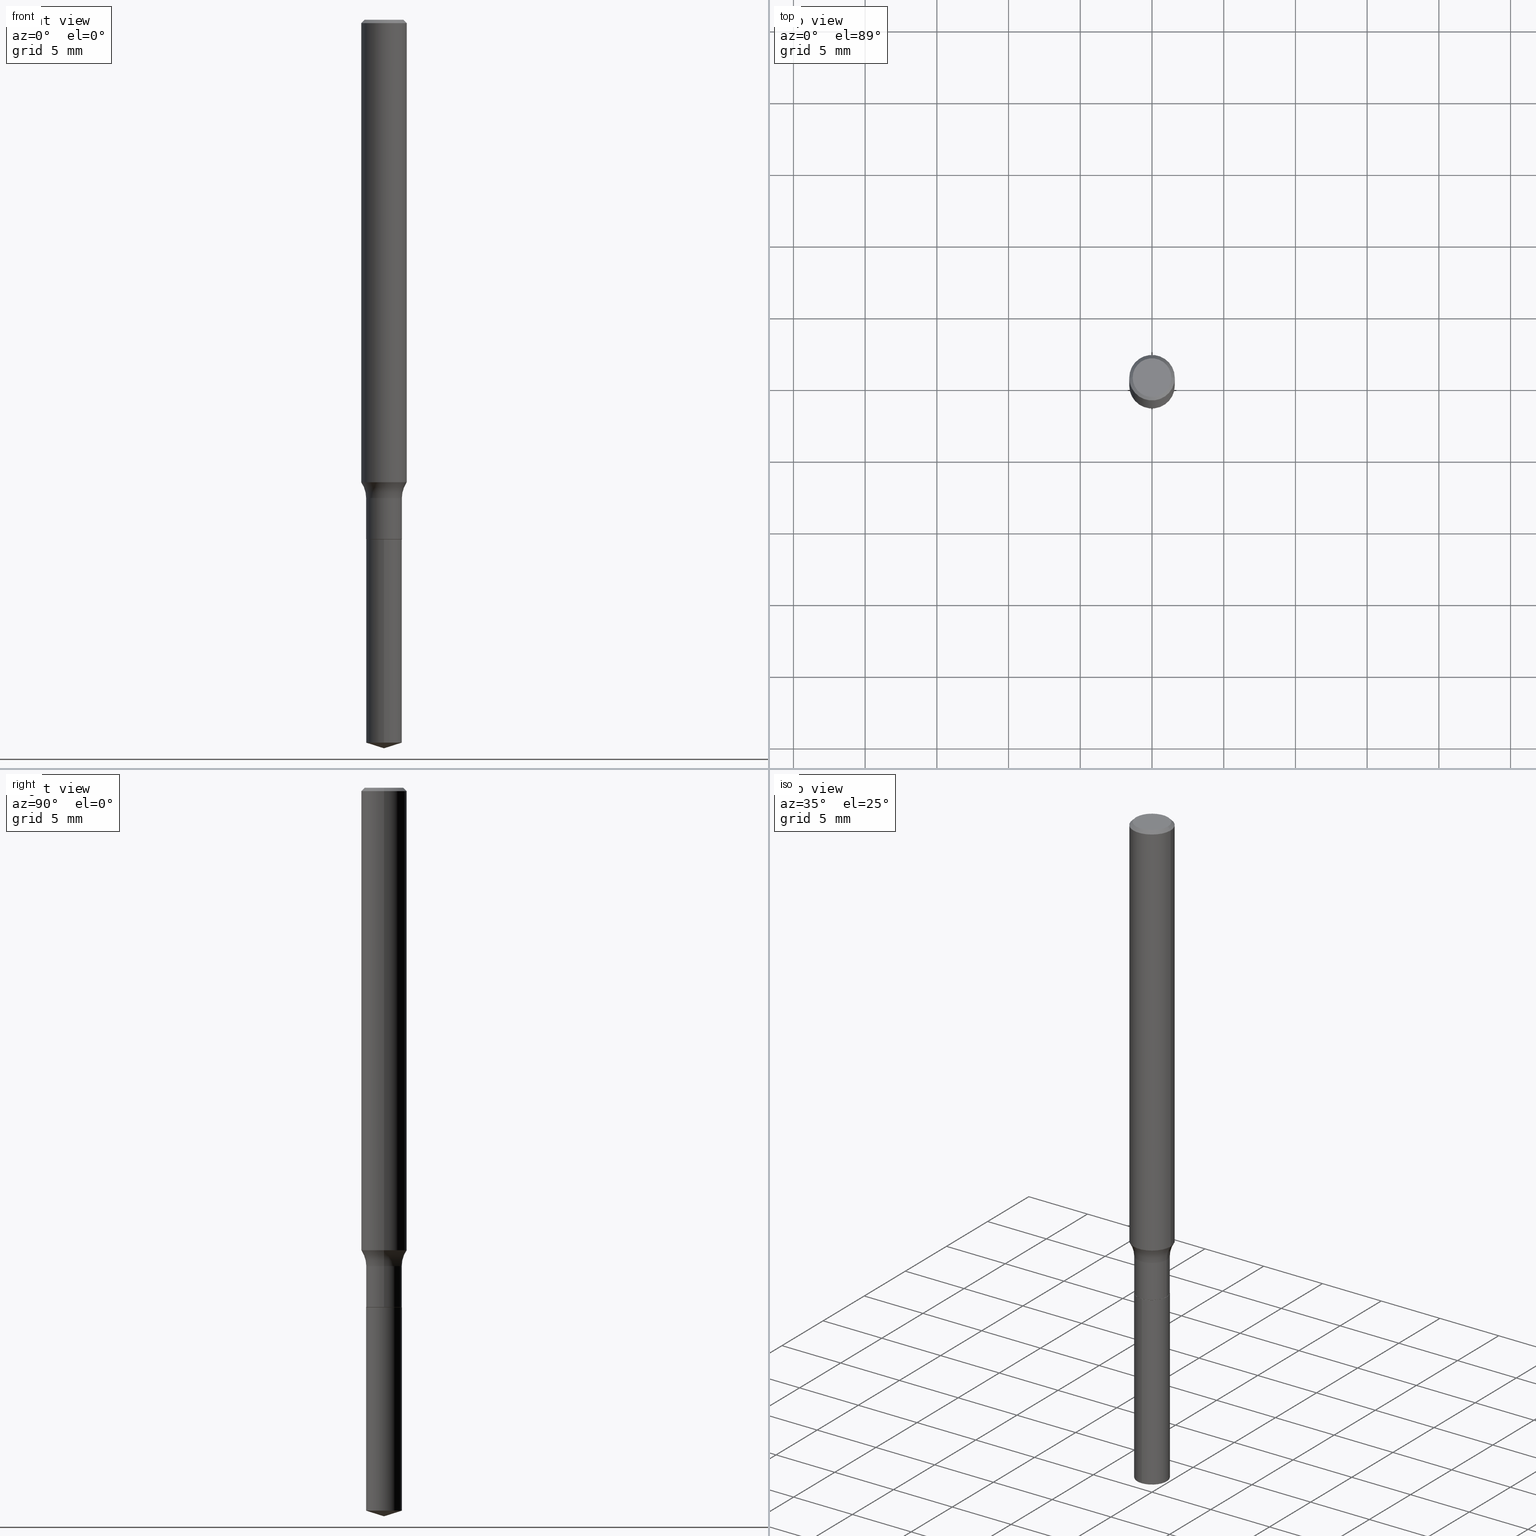
[diagram: canonical four-view strip — front | top / right | iso, engineering-drawing reading convention]
A machine part, canonical four-view strip (front | top / right | iso — engineering-drawing reading convention). The complete STEP part file that produces these views, byte-faithful:
ISO-10303-21;
HEADER;
FILE_DESCRIPTION (( 'STEP AP203' ),
    '1' );
FILE_NAME ('52306.STEP',
    '2024-04-19T13:31:49',
    ( '' ),
    ( '' ),
    'SwSTEP 2.0',
    'SolidWorks 2023',
    '' );
FILE_SCHEMA (( 'CONFIG_CONTROL_DESIGN' ));
ENDSEC;

DATA;
#1 = DIRECTION ( 'NONE',  ( -2.445105695917542443E-29, 3.492001333413293557E-15, 1.000000000000000000 ) ) ;
#2 = CYLINDRICAL_SURFACE ( 'NONE', #377, 0.06250000000000008327 ) ;
#3 = LINE ( 'NONE', #275, #361 ) ;
#4 = ORIENTED_EDGE ( 'NONE', *, *, #203, .T. ) ;
#5 = PERSON_AND_ORGANIZATION ( #209, #441 ) ;
#6 = DIRECTION ( 'NONE',  ( -2.445468806185136597E-29, 3.491481338843145583E-15, 1.000000000000000000 ) ) ;
#7 = DIRECTION ( 'NONE',  ( 1.000000000000000000, -6.982962677686269077E-15, 4.883557194083113462E-29 ) ) ;
#8 = ORIENTED_EDGE ( 'NONE', *, *, #301, .T. ) ;
#9 = PERSON_AND_ORGANIZATION ( #209, #441 ) ;
#10 = DIRECTION ( 'NONE',  ( -1.000000000000000000, 7.105427357601001859E-15, 0.000000000000000000 ) ) ;
#11 = ORIENTED_EDGE ( 'NONE', *, *, #59, .T. ) ;
#12 = LINE ( 'NONE', #126, #98 ) ;
#13 = ORIENTED_EDGE ( 'NONE', *, *, #114, .F. ) ;
#14 = ADVANCED_FACE ( 'NONE', ( #57 ), #20, .T. ) ;
#15 = DESIGN_CONTEXT ( 'detailed design', #397, 'design' ) ;
#16 = ORIENTED_EDGE ( 'NONE', *, *, #435, .F. ) ;
#17 = CIRCLE ( 'NONE', #181, 0.07799999999999995826 ) ;
#18 = PERSON_AND_ORGANIZATION ( #209, #441 ) ;
#19 = DIRECTION ( 'NONE',  ( 1.000000000000000000, 0.000000000000000000, 0.000000000000000000 ) ) ;
#20 = CYLINDRICAL_SURFACE ( 'NONE', #433, 0.04899999999999999495 ) ;
#21 = EDGE_LOOP ( 'NONE', ( #16, #29 ) ) ;
#22 = ORIENTED_EDGE ( 'NONE', *, *, #38, .T. ) ;
#23 = FACE_OUTER_BOUND ( 'NONE', #286, .T. ) ;
#24 = AXIS2_PLACEMENT_3D ( 'NONE', #390, #319, #46 ) ;
#25 = EDGE_LOOP ( 'NONE', ( #320, #82, #362, #179 ) ) ;
#26 = DIRECTION ( 'NONE',  ( 2.445468806185136597E-29, -3.491481338843145583E-15, -1.000000000000000000 ) ) ;
#27 = DIRECTION ( 'NONE',  ( -6.982962677686265922E-15, -1.000000000000000000, 5.575199987069924823E-15 ) ) ;
#28 = LINE ( 'NONE', #333, #113 ) ;
#29 = ORIENTED_EDGE ( 'NONE', *, *, #102, .F. ) ;
#30 = DIRECTION ( 'NONE',  ( -2.445468806185136597E-29, 3.491481338843145583E-15, 1.000000000000000000 ) ) ;
#31 = DIRECTION ( 'NONE',  ( 1.000000000000000000, -6.982962677686274599E-15, 0.000000000000000000 ) ) ;
#32 = ADVANCED_FACE ( 'NONE', ( #132 ), #61, .T. ) ;
#33 = DIRECTION ( 'NONE',  ( 2.438088387897960049E-29, -3.491481338843145188E-15, -1.000000000000000000 ) ) ;
#34 = CIRCLE ( 'NONE', #245, 0.04900000000000000189 ) ;
#35 = FACE_OUTER_BOUND ( 'NONE', #486, .T. ) ;
#36 = SECURITY_CLASSIFICATION ( '', '', #391 ) ;
#37 = FACE_OUTER_BOUND ( 'NONE', #401, .T. ) ;
#38 = EDGE_CURVE ( 'NONE', #478, #437, #211, .T. ) ;
#39 = DIRECTION ( 'NONE',  ( -2.445468806185136597E-29, 3.491481338843145583E-15, 1.000000000000000000 ) ) ;
#40 = CARTESIAN_POINT ( 'NONE',  ( 3.481659405224839130E-16, 0.04899999999999502670, -1.426100000000000145 ) ) ;
#41 = AXIS2_PLACEMENT_3D ( 'NONE', #418, #297, #417 ) ;
#42 = AXIS2_PLACEMENT_3D ( 'NONE', #410, #373, #31 ) ;
#43 = LINE ( 'NONE', #345, #479 ) ;
#44 = ORIENTED_EDGE ( 'NONE', *, *, #186, .T. ) ;
#45 = EDGE_CURVE ( 'NONE', #104, #130, #340, .T. ) ;
#46 = DIRECTION ( 'NONE',  ( 1.000000000000000000, -6.982962677686266711E-15, 0.000000000000000000 ) ) ;
#47 = ORIENTED_EDGE ( 'NONE', *, *, #122, .F. ) ;
#48 = PERSON_AND_ORGANIZATION ( #209, #441 ) ;
#49 = DIRECTION ( 'NONE',  ( -6.982962677686265922E-15, -1.000000000000000000, 5.575199987069924823E-15 ) ) ;
#50 =( NAMED_UNIT ( * ) PLANE_ANGLE_UNIT ( ) SI_UNIT ( $, .RADIAN. ) );
#51 = ORIENTED_EDGE ( 'NONE', *, *, #416, .T. ) ;
#52 = CIRCLE ( 'NONE', #155, 0.06250000000000000000 ) ;
#53 = DIRECTION ( 'NONE',  ( -6.982962677686265922E-15, -1.000000000000000000, 5.575199987069924823E-15 ) ) ;
#54 = PERSON_AND_ORGANIZATION_ROLE ( 'design_supplier' ) ;
#55 = ORIENTED_EDGE ( 'NONE', *, *, #342, .F. ) ;
#56 = PERSON_AND_ORGANIZATION_ROLE ( 'creator' ) ;
#57 = FACE_OUTER_BOUND ( 'NONE', #202, .T. ) ;
#58 = CIRCLE ( 'NONE', #191, 0.06250000000000016653 ) ;
#59 = EDGE_CURVE ( 'NONE', #170, #327, #383, .T. ) ;
#60 = ORIENTED_EDGE ( 'NONE', *, *, #153, .T. ) ;
#61 = CYLINDRICAL_SURFACE ( 'NONE', #64, 0.04900000000000000189 ) ;
#62 = DIMENSIONAL_EXPONENTS ( 1.000000000000000000, 0.000000000000000000, 0.000000000000000000, 0.000000000000000000, 0.000000000000000000, 0.000000000000000000, 0.000000000000000000 ) ;
#63 = ORIENTED_EDGE ( 'NONE', *, *, #84, .F. ) ;
#64 = AXIS2_PLACEMENT_3D ( 'NONE', #444, #244, #405 ) ;
#65 = LOCAL_TIME ( 9, 31, 49.00000000000000000, #199 ) ;
#66 = ORIENTED_EDGE ( 'NONE', *, *, #259, .T. ) ;
#67 = CYLINDRICAL_SURFACE ( 'NONE', #270, 0.06250000000000008327 ) ;
#68 = ADVANCED_FACE ( 'NONE', ( #183 ), #219, .F. ) ;
#69 = CARTESIAN_POINT ( 'NONE',  ( 4.852953219022108829E-29, -6.929310936801836809E-15, -1.984550359344929626 ) ) ;
#70 = CARTESIAN_POINT ( 'NONE',  ( -3.421651712065921676E-16, -0.04900000000000497707, -1.426099999999999479 ) ) ;
#71 = ADVANCED_FACE ( 'NONE', ( #37 ), #368, .F. ) ;
#72 = AXIS2_PLACEMENT_3D ( 'NONE', #372, #30, #180 ) ;
#73 = DIRECTION ( 'NONE',  ( -2.445105695917542443E-29, 3.492001333413293557E-15, 1.000000000000000000 ) ) ;
#74 = AXIS2_PLACEMENT_3D ( 'NONE', #430, #90, #19 ) ;
#75 = FACE_OUTER_BOUND ( 'NONE', #442, .T. ) ;
#76 = DIRECTION ( 'NONE',  ( -0.7071067811865466846, 2.468850131082247989E-15, -0.7071067811865483499 ) ) ;
#77 = DIRECTION ( 'NONE',  ( 1.000000000000000000, -6.982962677686266711E-15, 4.876176775795935793E-29 ) ) ;
#78 = DIRECTION ( 'NONE',  ( 1.000000000000000000, -6.982962677686261977E-15, 0.000000000000000000 ) ) ;
#79 = CARTESIAN_POINT ( 'NONE',  ( -9.137327455289349591E-28, 1.304971063546461931E-13, 37.37007874015748143 ) ) ;
#80 = EDGE_CURVE ( 'NONE', #135, #124, #408, .T. ) ;
#81 = CARTESIAN_POINT ( 'NONE',  ( -0.04899999999999999495, -4.433417753023238990E-15, -1.425599999999999978 ) ) ;
#82 = ORIENTED_EDGE ( 'NONE', *, *, #102, .T. ) ;
#83 = AXIS2_PLACEMENT_3D ( 'NONE', #386, #6, #314 ) ;
#84 = EDGE_CURVE ( 'NONE', #327, #120, #184, .T. ) ;
#85 = DIRECTION ( 'NONE',  ( 6.776566513254247093E-15, 0.9537169507482274877, 0.3007057995042713983 ) ) ;
#86 = ADVANCED_FACE ( 'NONE', ( #456 ), #148, .F. ) ;
#87 = FACE_OUTER_BOUND ( 'NONE', #95, .T. ) ;
#88 = EDGE_CURVE ( 'NONE', #124, #135, #341, .T. ) ;
#89 = DIRECTION ( 'NONE',  ( -2.445468806185136597E-29, 3.491481338843145583E-15, 1.000000000000000000 ) ) ;
#90 = DIRECTION ( 'NONE',  ( 0.000000000000000000, 0.000000000000000000, 1.000000000000000000 ) ) ;
#91 = CIRCLE ( 'NONE', #227, 0.04900000000000000189 ) ;
#92 = PERSON_AND_ORGANIZATION_ROLE ( 'classification_officer' ) ;
#93 = EDGE_LOOP ( 'NONE', ( #248, #232, #208 ) ) ;
#94 = DIRECTION ( 'NONE',  ( 1.000000000000000000, -6.982962677686266711E-15, 4.876176775795935232E-29 ) ) ;
#95 = EDGE_LOOP ( 'NONE', ( #238, #171, #292, #158 ) ) ;
#96 = DIRECTION ( 'NONE',  ( -2.445468806185136597E-29, 3.491481338843145583E-15, 1.000000000000000000 ) ) ;
#97 = AXIS2_PLACEMENT_3D ( 'NONE', #469, #467, #49 ) ;
#98 = VECTOR ( 'NONE', #85, 39.37007874015748854 ) ;
#99 = LOCAL_TIME ( 9, 31, 49.00000000000000000, #161 ) ;
#100 = COORDINATED_UNIVERSAL_TIME_OFFSET ( 5, 0, .BEHIND. ) ;
#101 = ORIENTED_EDGE ( 'NONE', *, *, #342, .T. ) ;
#102 = EDGE_CURVE ( 'NONE', #389, #309, #128, .T. ) ;
#103 = DIRECTION ( 'NONE',  ( -2.445468806185136877E-29, 3.491481338843145188E-15, 1.000000000000000000 ) ) ;
#104 = VERTEX_POINT ( 'NONE', #338 ) ;
#105 = CARTESIAN_POINT ( 'NONE',  ( -0.04850000000000000144, -4.631939083306449991E-15, -1.426099999999999923 ) ) ;
#106 = VECTOR ( 'NONE', #485, 39.37007874015748143 ) ;
#107 =( GEOMETRIC_REPRESENTATION_CONTEXT ( 3 ) GLOBAL_UNCERTAINTY_ASSIGNED_CONTEXT ( ( #323 ) ) GLOBAL_UNIT_ASSIGNED_CONTEXT ( ( #395, #50, #285 ) ) REPRESENTATION_CONTEXT ( 'NONE', 'WORKASPACE' ) );
#108 = CARTESIAN_POINT ( 'NONE',  ( -9.137327455289349591E-28, 1.304971063546461931E-13, 37.37007874015748143 ) ) ;
#109 = DIRECTION ( 'NONE',  ( -0.7071067811866138531, 7.493145998870593974E-15, 0.7071067811864811814 ) ) ;
#110 = EDGE_CURVE ( 'NONE', #170, #396, #452, .T. ) ;
#111 = VECTOR ( 'NONE', #142, 39.37007874015748143 ) ;
#112 = DIRECTION ( 'NONE',  ( -1.000000000000000000, 6.982962677686265922E-15, -4.876176775795935793E-29 ) ) ;
#113 = VECTOR ( 'NONE', #296, 39.37007874015748143 ) ;
#114 = EDGE_CURVE ( 'NONE', #251, #217, #223, .T. ) ;
#115 = CARTESIAN_POINT ( 'NONE',  ( 4.890211391835084886E-29, -6.984002666826587114E-15, -2.000000000000000000 ) ) ;
#116 = DIRECTION ( 'NONE',  ( -2.445468806185136877E-29, 3.491481338843145188E-15, 1.000000000000000000 ) ) ;
#117 = ADVANCED_FACE ( 'NONE', ( #447 ), #196, .T. ) ;
#118 = ORIENTED_EDGE ( 'NONE', *, *, #182, .T. ) ;
#119 = CARTESIAN_POINT ( 'NONE',  ( 0.06250000000000008327, -4.364351673553922611E-16, 3.047610484872464074E-30 ) ) ;
#120 = VERTEX_POINT ( 'NONE', #258 ) ;
#121 = CONICAL_SURFACE ( 'NONE', #480, 0.06250000000000000000, 0.7853981633974471688 ) ;
#122 = EDGE_CURVE ( 'NONE', #217, #437, #384, .T. ) ;
#123 = DIRECTION ( 'NONE',  ( -2.445105695917542443E-29, 3.492001333413293557E-15, 1.000000000000000000 ) ) ;
#124 = VERTEX_POINT ( 'NONE', #411 ) ;
#125 = APPROVAL ( #475, 'UNSPECIFIED' ) ;
#126 = CARTESIAN_POINT ( 'NONE',  ( 4.891256136483247926E-29, -6.982519538313610821E-15, -2.000000000000000000 ) ) ;
#127 = DIRECTION ( 'NONE',  ( 1.000000000000000000, -6.982962677686274599E-15, 0.000000000000000000 ) ) ;
#128 = CIRCLE ( 'NONE', #41, 0.04850000000000000144 ) ;
#129 = DATE_AND_TIME ( #398, #65 ) ;
#130 = VERTEX_POINT ( 'NONE', #228 ) ;
#131 = DATE_AND_TIME ( #363, #99 ) ;
#132 = FACE_OUTER_BOUND ( 'NONE', #151, .T. ) ;
#133 = CC_DESIGN_DATE_AND_TIME_ASSIGNMENT ( #247, #402, ( #318 ) ) ;
#134 = CALENDAR_DATE ( 2024, 19, 4 ) ;
#135 = VERTEX_POINT ( 'NONE', #465 ) ;
#136 = VECTOR ( 'NONE', #357, 39.37007874015748143 ) ;
#137 = VERTEX_POINT ( 'NONE', #192 ) ;
#138 = PRODUCT_RELATED_PRODUCT_CATEGORY ( 'detail', '', ( #450 ) ) ;
#139 = ORIENTED_EDGE ( 'NONE', *, *, #88, .T. ) ;
#140 = DIRECTION ( 'NONE',  ( 1.000000000000000000, -6.982962677686259611E-15, 0.000000000000000000 ) ) ;
#141 = CARTESIAN_POINT ( 'NONE',  ( 3.487483064500622693E-29, -4.979201537324209694E-15, -1.426099999999999923 ) ) ;
#142 = DIRECTION ( 'NONE',  ( -6.659769872151621833E-15, -0.9537169507482252673, 0.3007057995042780596 ) ) ;
#143 = VECTOR ( 'NONE', #1, 39.37007874015748143 ) ;
#144 = CARTESIAN_POINT ( 'NONE',  ( 9.546038302585977863E-46, -1.362921273379660165E-31, -3.903561672282188024E-17 ) ) ;
#145 = DIRECTION ( 'NONE',  ( 1.000000000000000000, -6.982962677686266711E-15, 4.881282378734115390E-29 ) ) ;
#146 = CARTESIAN_POINT ( 'NONE',  ( 0.000000000000000000, 0.000000000000000000, 0.000000000000000000 ) ) ;
#147 = CONICAL_SURFACE ( 'NONE', #83, 0.04850000000000000144, 0.7853981633975420928 ) ;
#148 = PLANE ( 'NONE',  #205 ) ;
#149 = DIRECTION ( 'NONE',  ( -2.445468806185136597E-29, 3.491481338843145583E-15, 1.000000000000000000 ) ) ;
#150 = DIRECTION ( 'NONE',  ( -6.982962677686266711E-15, -1.000000000000000000, 3.491481338843145583E-15 ) ) ;
#151 = EDGE_LOOP ( 'NONE', ( #139, #8, #169, #470 ) ) ;
#152 = FACE_OUTER_BOUND ( 'NONE', #474, .T. ) ;
#153 = EDGE_CURVE ( 'NONE', #481, #135, #12, .T. ) ;
#154 = DIRECTION ( 'NONE',  ( -2.445468806185136597E-29, 3.491481338843145583E-15, 1.000000000000000000 ) ) ;
#155 = AXIS2_PLACEMENT_3D ( 'NONE', #212, #455, #412 ) ;
#156 = EDGE_LOOP ( 'NONE', ( #445, #4, #387, #295 ) ) ;
#157 = LINE ( 'NONE', #119, #136 ) ;
#158 = ORIENTED_EDGE ( 'NONE', *, *, #110, .F. ) ;
#159 = SHAPE_DEFINITION_REPRESENTATION ( #326, #346 ) ;
#160 = CARTESIAN_POINT ( 'NONE',  ( 0.1269999999999999740, -5.472547850502743169E-15, -1.313399999999999901 ) ) ;
#161 = COORDINATED_UNIVERSAL_TIME_OFFSET ( 5, 0, .BEHIND. ) ;
#162 = EDGE_CURVE ( 'NONE', #130, #437, #237, .T. ) ;
#163 = LENGTH_MEASURE_WITH_UNIT ( LENGTH_MEASURE( 0.02539999999999999897 ), #308 );
#164 = ORIENTED_EDGE ( 'NONE', *, *, #302, .F. ) ;
#165 = CIRCLE ( 'NONE', #24, 0.06250000000000000000 ) ;
#166 = APPROVAL_PERSON_ORGANIZATION ( #168, #125, #236 ) ;
#167 = EDGE_CURVE ( 'NONE', #396, #120, #165, .T. ) ;
#168 = PERSON_AND_ORGANIZATION ( #209, #441 ) ;
#169 = ORIENTED_EDGE ( 'NONE', *, *, #186, .F. ) ;
#170 = VERTEX_POINT ( 'NONE', #231 ) ;
#171 = ORIENTED_EDGE ( 'NONE', *, *, #84, .T. ) ;
#172 = CARTESIAN_POINT ( 'NONE',  ( 0.05312499999999999861, -4.129888592719940335E-16, -3.903561672281913772E-17 ) ) ;
#173 = ADVANCED_FACE ( 'NONE', ( #87 ), #448, .T. ) ;
#174 = CLOSED_SHELL ( 'NONE', ( #32, #117, #484, #218, #263 ) ) ;
#175 = AXIS2_PLACEMENT_3D ( 'NONE', #69, #260, #27 ) ;
#176 = LOCAL_TIME ( 9, 31, 49.00000000000000000, #321 ) ;
#177 = ORIENTED_EDGE ( 'NONE', *, *, #203, .F. ) ;
#178 = CARTESIAN_POINT ( 'NONE',  ( 3.211878730043558041E-29, -4.585711590436587801E-15, -1.313399999999999901 ) ) ;
#179 = ORIENTED_EDGE ( 'NONE', *, *, #287, .F. ) ;
#180 = DIRECTION ( 'NONE',  ( 1.000000000000000000, -6.982962677686276966E-15, 0.000000000000000000 ) ) ;
#181 = AXIS2_PLACEMENT_3D ( 'NONE', #200, #234, #10 ) ;
#182 = EDGE_CURVE ( 'NONE', #130, #120, #157, .T. ) ;
#183 = FACE_OUTER_BOUND ( 'NONE', #21, .T. ) ;
#184 = LINE ( 'NONE', #375, #471 ) ;
#185 = DIRECTION ( 'NONE',  ( -6.982962677686268288E-15, -1.000000000000000000, 3.500519750498758863E-15 ) ) ;
#186 = EDGE_CURVE ( 'NONE', #316, #137, #91, .T. ) ;
#187 = EDGE_CURVE ( 'NONE', #137, #316, #34, .T. ) ;
#188 = MANIFOLD_SOLID_BREP ( 'Body-Move/Copy2[2]', #268 ) ;
#189 = CIRCLE ( 'NONE', #215, 0.04899999999999998107 ) ;
#190 = DIRECTION ( 'NONE',  ( -6.982962677686265922E-15, -1.000000000000000000, 5.575199987069924823E-15 ) ) ;
#191 = AXIS2_PLACEMENT_3D ( 'NONE', #336, #483, #140 ) ;
#192 = CARTESIAN_POINT ( 'NONE',  ( 3.481659405224976194E-16, 0.04899999999999501282, -1.426100000000000145 ) ) ;
#193 = CC_DESIGN_DATE_AND_TIME_ASSIGNMENT ( #276, #241, ( #36 ) ) ;
#194 = DIRECTION ( 'NONE',  ( 6.982962677686265922E-15, 1.000000000000000000, -3.492001333413293557E-15 ) ) ;
#195 = DIRECTION ( 'NONE',  ( -1.000000000000000000, 6.982962677686266711E-15, 0.000000000000000000 ) ) ;
#196 = CONICAL_SURFACE ( 'NONE', #458, 124.8659371009131291, 1.265363707695887241 ) ;
#197 = ORIENTED_EDGE ( 'NONE', *, *, #404, .F. ) ;
#198 = VECTOR ( 'NONE', #109, 39.37007874015748143 ) ;
#199 = COORDINATED_UNIVERSAL_TIME_OFFSET ( 5, 0, .BEHIND. ) ;
#200 = CARTESIAN_POINT ( 'NONE',  ( -0.1269999999999999740, -3.683322316021260553E-15, -1.313399999999999901 ) ) ;
#201 = ORIENTED_EDGE ( 'NONE', *, *, #435, .T. ) ;
#202 = EDGE_LOOP ( 'NONE', ( #460, #407, #366, #359 ) ) ;
#203 = EDGE_CURVE ( 'NONE', #104, #217, #17, .T. ) ;
#204 = CARTESIAN_POINT ( 'NONE',  ( 0.000000000000000000, 0.000000000000000000, 0.000000000000000000 ) ) ;
#205 = AXIS2_PLACEMENT_3D ( 'NONE', #266, #33, #112 ) ;
#206 = CC_DESIGN_APPROVAL ( #125, ( #318 ) ) ;
#207 = APPLICATION_PROTOCOL_DEFINITION ( 'international standard', 'config_control_design', 1994, #397 ) ;
#208 = ORIENTED_EDGE ( 'NONE', *, *, #80, .F. ) ;
#209 = PERSON ( 'UNSPECIFIED', 'UNSPECIFIED', 'UNSPECIFIED', ('UNSPECIFIED'), ('UNSPECIFIED'), ('UNSPECIFIED') ) ;
#210 = ADVANCED_FACE ( 'NONE', ( #343 ), #147, .T. ) ;
#211 = LINE ( 'NONE', #213, #280 ) ;
#212 = CARTESIAN_POINT ( 'NONE',  ( 2.292627005798581061E-31, -3.273263755165471417E-17, -0.009375000000000063838 ) ) ;
#213 = CARTESIAN_POINT ( 'NONE',  ( 0.04899999999999999495, -3.421651712066270254E-16, 2.389326620140008090E-30 ) ) ;
#214 = DIRECTION ( 'NONE',  ( 1.000000000000000000, -6.982962677686266711E-15, 4.876176775795935793E-29 ) ) ;
#215 = AXIS2_PLACEMENT_3D ( 'NONE', #459, #267, #420 ) ;
#216 = LINE ( 'NONE', #337, #111 ) ;
#217 = VERTEX_POINT ( 'NONE', #388 ) ;
#218 = ADVANCED_FACE ( 'NONE', ( #152 ), #225, .T. ) ;
#219 = PLANE ( 'NONE',  #376 ) ;
#220 = APPLICATION_CONTEXT ( 'configuration controlled 3d designs of mechanical parts and assemblies' ) ;
#221 = VECTOR ( 'NONE', #76, 39.37007874015748143 ) ;
#222 = APPROVAL_PERSON_ORGANIZATION ( #5, #240, #230 ) ;
#223 = LINE ( 'NONE', #380, #106 ) ;
#224 = CYLINDRICAL_SURFACE ( 'NONE', #434, 0.04899999999999999495 ) ;
#225 = CYLINDRICAL_SURFACE ( 'NONE', #97, 0.04900000000000000189 ) ;
#226 = CARTESIAN_POINT ( 'NONE',  ( 3.487483064500622693E-29, -4.979201537324209694E-15, -1.426099999999999923 ) ) ;
#227 = AXIS2_PLACEMENT_3D ( 'NONE', #307, #353, #190 ) ;
#228 = CARTESIAN_POINT ( 'NONE',  ( 0.06250000000000013878, -4.869008380233988081E-15, -1.269539425448359404 ) ) ;
#229 = CC_DESIGN_SECURITY_CLASSIFICATION ( #36, ( #392 ) ) ;
#230 = APPROVAL_ROLE ( '' ) ;
#231 = CARTESIAN_POINT ( 'NONE',  ( -0.05312499999999999861, 3.873362110279099094E-16, -3.903561672282453649E-17 ) ) ;
#232 = ORIENTED_EDGE ( 'NONE', *, *, #306, .T. ) ;
#233 = COORDINATED_UNIVERSAL_TIME_OFFSET ( 5, 0, .BEHIND. ) ;
#234 = DIRECTION ( 'NONE',  ( 7.105427357601001859E-15, 1.000000000000000000, -3.491481338843145583E-15 ) ) ;
#235 = CARTESIAN_POINT ( 'NONE',  ( 3.487483064500622693E-29, -4.979201537324209694E-15, -1.426099999999999923 ) ) ;
#236 = APPROVAL_ROLE ( '' ) ;
#237 = CIRCLE ( 'NONE', #282, 0.07799999999999995826 ) ;
#238 = ORIENTED_EDGE ( 'NONE', *, *, #374, .F. ) ;
#239 = CALENDAR_DATE ( 2024, 19, 4 ) ;
#240 = APPROVAL ( #394, 'UNSPECIFIED' ) ;
#241 = DATE_TIME_ROLE ( 'classification_date' ) ;
#242 = PERSON_AND_ORGANIZATION_ROLE ( 'design_owner' ) ;
#243 = ORIENTED_EDGE ( 'NONE', *, *, #374, .T. ) ;
#244 = DIRECTION ( 'NONE',  ( -2.445105695917542443E-29, 3.492001333413293557E-15, 1.000000000000000000 ) ) ;
#245 = AXIS2_PLACEMENT_3D ( 'NONE', #235, #123, #53 ) ;
#246 = EDGE_CURVE ( 'NONE', #104, #396, #43, .T. ) ;
#247 = DATE_AND_TIME ( #134, #488 ) ;
#248 = ORIENTED_EDGE ( 'NONE', *, *, #153, .F. ) ;
#249 = CARTESIAN_POINT ( 'NONE',  ( 3.104619063156163853E-29, -4.432573212878595623E-15, -1.269539425448359404 ) ) ;
#250 = CARTESIAN_POINT ( 'NONE',  ( 0.04850000000000000144, -5.317875227191993219E-15, -1.426099999999999923 ) ) ;
#251 = VERTEX_POINT ( 'NONE', #81 ) ;
#252 = EDGE_CURVE ( 'NONE', #437, #217, #189, .T. ) ;
#253 = CARTESIAN_POINT ( 'NONE',  ( -0.06250000000000000000, -1.788563715365060904E-15, -0.009375000000000063838 ) ) ;
#254 = CONICAL_SURFACE ( 'NONE', #351, 0.04850000000000000144, 0.7853981633975420928 ) ;
#255 = CC_DESIGN_APPROVAL ( #240, ( #36 ) ) ;
#256 = DIRECTION ( 'NONE',  ( -2.445105695917542443E-29, 3.492001333413293557E-15, 1.000000000000000000 ) ) ;
#257 = DIRECTION ( 'NONE',  ( -2.445468806185136597E-29, 3.491481338843145583E-15, 1.000000000000000000 ) ) ;
#258 = CARTESIAN_POINT ( 'NONE',  ( 0.06250000000000000000, -4.691678049070463404E-16, -0.009375000000000063838 ) ) ;
#259 = EDGE_CURVE ( 'NONE', #124, #316, #3, .T. ) ;
#260 = DIRECTION ( 'NONE',  ( -2.445105695917542443E-29, 3.492001333413293557E-15, 1.000000000000000000 ) ) ;
#261 = CIRCLE ( 'NONE', #439, 0.04899999999999999495 ) ;
#262 = AXIS2_PLACEMENT_3D ( 'NONE', #79, #379, #185 ) ;
#263 = ADVANCED_FACE ( 'NONE', ( #317 ), #310, .F. ) ;
#264 = CARTESIAN_POINT ( 'NONE',  ( -0.06250000000000000000, 4.037025298037369984E-16, -0.009375000000000063838 ) ) ;
#265 = DIRECTION ( 'NONE',  ( -2.445468806185136597E-29, 3.491481338843145583E-15, 1.000000000000000000 ) ) ;
#266 = CARTESIAN_POINT ( 'NONE',  ( 4.773019151292988932E-46, -6.814606366898300824E-32, -1.951780836141094012E-17 ) ) ;
#267 = DIRECTION ( 'NONE',  ( -2.445468806185136597E-29, 3.491481338843145583E-15, 1.000000000000000000 ) ) ;
#268 = CLOSED_SHELL ( 'NONE', ( #273, #173, #487, #477, #14, #473, #71, #311, #335, #86, #68, #210 ) ) ;
#269 = APPROVAL_STATUS ( 'not_yet_approved' ) ;
#270 = AXIS2_PLACEMENT_3D ( 'NONE', #490, #449, #214 ) ;
#271 = DIRECTION ( 'NONE',  ( -2.445105695917542443E-29, 3.492001333413293557E-15, 1.000000000000000000 ) ) ;
#272 = CIRCLE ( 'NONE', #415, 0.04850000000000000144 ) ;
#273 = ADVANCED_FACE ( 'NONE', ( #348 ), #254, .T. ) ;
#274 = DATE_AND_TIME ( #239, #176 ) ;
#275 = CARTESIAN_POINT ( 'NONE',  ( -3.421651712065921676E-16, -0.04900000000000497707, -1.426099999999999479 ) ) ;
#276 = DATE_AND_TIME ( #472, #369 ) ;
#277 = DIRECTION ( 'NONE',  ( 1.000000000000000000, -6.982962677686261977E-15, 0.000000000000000000 ) ) ;
#278 = PERSON_AND_ORGANIZATION ( #209, #441 ) ;
#279 = ORIENTED_EDGE ( 'NONE', *, *, #301, .F. ) ;
#280 = VECTOR ( 'NONE', #103, 39.37007874015748143 ) ;
#281 = LINE ( 'NONE', #40, #143 ) ;
#282 = AXIS2_PLACEMENT_3D ( 'NONE', #160, #150, #78 ) ;
#283 = ORIENTED_EDGE ( 'NONE', *, *, #80, .T. ) ;
#284 = CIRCLE ( 'NONE', #464, 0.05312499999999999861 ) ;
#285 =( NAMED_UNIT ( * ) SI_UNIT ( $, .STERADIAN. ) SOLID_ANGLE_UNIT ( ) );
#286 = EDGE_LOOP ( 'NONE', ( #63, #403, #328, #364 ) ) ;
#287 = EDGE_CURVE ( 'NONE', #251, #478, #261, .T. ) ;
#288 = APPROVAL_DATE_TIME ( #131, #125 ) ;
#289 = DIRECTION ( 'NONE',  ( -2.445468806185136597E-29, 3.491481338843145583E-15, 1.000000000000000000 ) ) ;
#290 = APPROVAL ( #269, 'UNSPECIFIED' ) ;
#291 = PERSON_AND_ORGANIZATION ( #209, #441 ) ;
#292 = ORIENTED_EDGE ( 'NONE', *, *, #302, .T. ) ;
#293 = TOROIDAL_SURFACE ( 'NONE', #315, 0.1269999999999999740, 0.07799999999999995826 ) ;
#294 = ORIENTED_EDGE ( 'NONE', *, *, #162, .T. ) ;
#295 = ORIENTED_EDGE ( 'NONE', *, *, #162, .F. ) ;
#296 = DIRECTION ( 'NONE',  ( 0.7071067811866138531, -2.468850131082952047E-15, 0.7071067811864811814 ) ) ;
#297 = DIRECTION ( 'NONE',  ( -2.445468806185136597E-29, 3.491481338843145583E-15, 1.000000000000000000 ) ) ;
#298 = AXIS2_PLACEMENT_3D ( 'NONE', #331, #482, #145 ) ;
#299 = CARTESIAN_POINT ( 'NONE',  ( 4.852953219022108829E-29, -6.929310936801836809E-15, -1.984550359344929626 ) ) ;
#300 = LINE ( 'NONE', #453, #198 ) ;
#301 = EDGE_CURVE ( 'NONE', #135, #137, #281, .T. ) ;
#302 = EDGE_CURVE ( 'NONE', #120, #396, #52, .T. ) ;
#303 = DIRECTION ( 'NONE',  ( -2.445468806185136597E-29, 3.491481338843145583E-15, 1.000000000000000000 ) ) ;
#304 = DIRECTION ( 'NONE',  ( 0.7071067811865466846, -7.319954787623252890E-15, -0.7071067811865483499 ) ) ;
#305 = CARTESIAN_POINT ( 'NONE',  ( 0.04899999999999999495, -5.319620967861416301E-15, -1.425599999999999978 ) ) ;
#306 = EDGE_CURVE ( 'NONE', #481, #124, #216, .T. ) ;
#307 = CARTESIAN_POINT ( 'NONE',  ( 3.487483064500622693E-29, -4.979201537324209694E-15, -1.426099999999999923 ) ) ;
#308 =( LENGTH_UNIT ( ) NAMED_UNIT ( * ) SI_UNIT ( $, .METRE. ) );
#309 = VERTEX_POINT ( 'NONE', #250 ) ;
#310 = PLANE ( 'NONE',  #463 ) ;
#311 = ADVANCED_FACE ( 'NONE', ( #35 ), #67, .T. ) ;
#312 = EDGE_LOOP ( 'NONE', ( #11, #243 ) ) ;
#313 = APPROVAL_DATE_TIME ( #274, #290 ) ;
#314 = DIRECTION ( 'NONE',  ( 1.000000000000000000, -6.982962677686261977E-15, 0.000000000000000000 ) ) ;
#315 = AXIS2_PLACEMENT_3D ( 'NONE', #419, #149, #7 ) ;
#316 = VERTEX_POINT ( 'NONE', #70 ) ;
#317 = FACE_OUTER_BOUND ( 'NONE', #334, .T. ) ;
#318 = PRODUCT_DEFINITION ( 'UNKNOWN', '', #392, #15 ) ;
#319 = DIRECTION ( 'NONE',  ( -2.445468806185136597E-29, 3.491481338843145583E-15, 1.000000000000000000 ) ) ;
#320 = ORIENTED_EDGE ( 'NONE', *, *, #416, .F. ) ;
#321 = COORDINATED_UNIVERSAL_TIME_OFFSET ( 5, 0, .BEHIND. ) ;
#322 = AXIS2_PLACEMENT_3D ( 'NONE', #249, #289, #367 ) ;
#323 = UNCERTAINTY_MEASURE_WITH_UNIT (LENGTH_MEASURE( 1.000000000000000082E-05 ), #395, 'distance_accuracy_value', 'NONE');
#324 = AXIS2_PLACEMENT_3D ( 'NONE', #299, #73, #378 ) ;
#325 = EDGE_LOOP ( 'NONE', ( #201, #51, #197, #422 ) ) ;
#326 = PRODUCT_DEFINITION_SHAPE ( 'NONE', 'NONE',  #318 ) ;
#327 = VERTEX_POINT ( 'NONE', #172 ) ;
#328 = ORIENTED_EDGE ( 'NONE', *, *, #110, .T. ) ;
#329 = ORIENTED_EDGE ( 'NONE', *, *, #167, .F. ) ;
#330 = DIRECTION ( 'NONE',  ( -1.000000000000000000, 6.982962677686266711E-15, 0.000000000000000000 ) ) ;
#331 = CARTESIAN_POINT ( 'NONE',  ( 9.546038302585977863E-46, -1.362921273379660165E-31, -3.903561672282188024E-17 ) ) ;
#332 = DIRECTION ( 'NONE',  ( -2.445468806185136597E-29, 3.491481338843145583E-15, 1.000000000000000000 ) ) ;
#333 = CARTESIAN_POINT ( 'NONE',  ( 0.04850000000000000144, -5.317875227191993219E-15, -1.426099999999999923 ) ) ;
#334 = EDGE_LOOP ( 'NONE', ( #44, #399 ) ) ;
#335 = ADVANCED_FACE ( 'NONE', ( #23 ), #121, .T. ) ;
#336 = CARTESIAN_POINT ( 'NONE',  ( 3.104619063156163853E-29, -4.432573212878595623E-15, -1.269539425448359404 ) ) ;
#337 = CARTESIAN_POINT ( 'NONE',  ( 4.890211391835084325E-29, -6.984002666826587114E-15, -2.000000000000000000 ) ) ;
#338 = CARTESIAN_POINT ( 'NONE',  ( -0.06250000000000013878, -3.988484003028533007E-15, -1.269539425448359404 ) ) ;
#339 = DIRECTION ( 'NONE',  ( 1.000000000000000000, -6.982962677686269077E-15, 4.883557194083113462E-29 ) ) ;
#340 = CIRCLE ( 'NONE', #322, 0.06250000000000016653 ) ;
#341 = CIRCLE ( 'NONE', #324, 0.04900000000000000189 ) ;
#342 = EDGE_CURVE ( 'NONE', #130, #104, #58, .T. ) ;
#343 = FACE_OUTER_BOUND ( 'NONE', #25, .T. ) ;
#344 = FACE_OUTER_BOUND ( 'NONE', #156, .T. ) ;
#345 = CARTESIAN_POINT ( 'NONE',  ( -0.06250000000000008327, 4.440892098500632078E-16, -3.074334431409319967E-30 ) ) ;
#346 = ADVANCED_BREP_SHAPE_REPRESENTATION ( '52306', ( #365, #188, #74 ), #107 ) ;
#347 = ORIENTED_EDGE ( 'NONE', *, *, #246, .F. ) ;
#348 = FACE_OUTER_BOUND ( 'NONE', #325, .T. ) ;
#349 = FACE_OUTER_BOUND ( 'NONE', #436, .T. ) ;
#350 = ORIENTED_EDGE ( 'NONE', *, *, #45, .T. ) ;
#351 = AXIS2_PLACEMENT_3D ( 'NONE', #382, #154, #277 ) ;
#352 = CIRCLE ( 'NONE', #42, 0.04899999999999999495 ) ;
#353 = DIRECTION ( 'NONE',  ( -2.445105695917542443E-29, 3.492001333413293557E-15, 1.000000000000000000 ) ) ;
#354 = APPLICATION_PROTOCOL_DEFINITION ( 'international standard', 'config_control_design', 1994, #220 ) ;
#355 = EDGE_LOOP ( 'NONE', ( #358, #60, #476 ) ) ;
#356 = CC_DESIGN_PERSON_AND_ORGANIZATION_ASSIGNMENT ( #291, #440, ( #318 ) ) ;
#357 = DIRECTION ( 'NONE',  ( -2.445468806185136877E-29, 3.491481338843145188E-15, 1.000000000000000000 ) ) ;
#358 = ORIENTED_EDGE ( 'NONE', *, *, #306, .F. ) ;
#359 = ORIENTED_EDGE ( 'NONE', *, *, #38, .F. ) ;
#360 = APPROVAL_ROLE ( '' ) ;
#361 = VECTOR ( 'NONE', #271, 39.37007874015748143 ) ;
#362 = ORIENTED_EDGE ( 'NONE', *, *, #370, .T. ) ;
#363 = CALENDAR_DATE ( 2024, 19, 4 ) ;
#364 = ORIENTED_EDGE ( 'NONE', *, *, #167, .T. ) ;
#365 = MANIFOLD_SOLID_BREP ( 'Body-Move/Copy2[1]', #174 ) ;
#366 = ORIENTED_EDGE ( 'NONE', *, *, #252, .F. ) ;
#367 = DIRECTION ( 'NONE',  ( 1.000000000000000000, -6.982962677686259611E-15, 0.000000000000000000 ) ) ;
#368 = TOROIDAL_SURFACE ( 'NONE', #423, 0.1269999999999999740, 0.07799999999999995826 ) ;
#369 = LOCAL_TIME ( 9, 31, 49.00000000000000000, #233 ) ;
#370 = EDGE_CURVE ( 'NONE', #309, #478, #28, .T. ) ;
#371 = ORIENTED_EDGE ( 'NONE', *, *, #287, .T. ) ;
#372 = CARTESIAN_POINT ( 'NONE',  ( 3.211878730043558041E-29, -4.585711590436587801E-15, -1.313399999999999901 ) ) ;
#373 = DIRECTION ( 'NONE',  ( -2.445468806185136597E-29, 3.491481338843145583E-15, 1.000000000000000000 ) ) ;
#374 = EDGE_CURVE ( 'NONE', #327, #170, #284, .T. ) ;
#375 = CARTESIAN_POINT ( 'NONE',  ( 0.06250000000000000000, -4.615137624123753937E-16, -0.009375000000000063838 ) ) ;
#376 = AXIS2_PLACEMENT_3D ( 'NONE', #141, #414, #489 ) ;
#377 = AXIS2_PLACEMENT_3D ( 'NONE', #146, #265, #77 ) ;
#378 = DIRECTION ( 'NONE',  ( -6.982962677686265922E-15, -1.000000000000000000, 5.575199987069924823E-15 ) ) ;
#379 = DIRECTION ( 'NONE',  ( -2.445105695917542443E-29, 3.492001333413293557E-15, 1.000000000000000000 ) ) ;
#380 = CARTESIAN_POINT ( 'NONE',  ( -0.04899999999999999495, 3.481659405224490552E-16, -2.410278194224903530E-30 ) ) ;
#381 = CARTESIAN_POINT ( 'NONE',  ( 0.04899999999999998107, -4.927876761643215123E-15, -1.313399999999999901 ) ) ;
#382 = CARTESIAN_POINT ( 'NONE',  ( 3.487483064500622693E-29, -4.979201537324209694E-15, -1.426099999999999923 ) ) ;
#383 = CIRCLE ( 'NONE', #298, 0.05312499999999999861 ) ;
#384 = CIRCLE ( 'NONE', #72, 0.04899999999999998107 ) ;
#385 = CONICAL_SURFACE ( 'NONE', #262, 124.8659371009131291, 1.265363707695887241 ) ;
#386 = CARTESIAN_POINT ( 'NONE',  ( 3.487483064500622693E-29, -4.979201537324209694E-15, -1.426099999999999923 ) ) ;
#387 = ORIENTED_EDGE ( 'NONE', *, *, #122, .T. ) ;
#388 = CARTESIAN_POINT ( 'NONE',  ( -0.04899999999999998107, -4.433417753023238990E-15, -1.313399999999999901 ) ) ;
#389 = VERTEX_POINT ( 'NONE', #105 ) ;
#390 = CARTESIAN_POINT ( 'NONE',  ( 2.292627005798581061E-31, -3.273263755165471417E-17, -0.009375000000000063838 ) ) ;
#391 = SECURITY_CLASSIFICATION_LEVEL ( 'unclassified' ) ;
#392 = PRODUCT_DEFINITION_FORMATION_WITH_SPECIFIED_SOURCE ( 'ANY', '', #450, .NOT_KNOWN. ) ;
#393 = CARTESIAN_POINT ( 'NONE',  ( 2.292627005798581061E-31, -3.273263755165471417E-17, -0.009375000000000063838 ) ) ;
#394 = APPROVAL_STATUS ( 'not_yet_approved' ) ;
#395 =( CONVERSION_BASED_UNIT ( 'INCH', #163 ) LENGTH_UNIT ( ) NAMED_UNIT ( #62 ) );
#396 = VERTEX_POINT ( 'NONE', #253 ) ;
#397 = APPLICATION_CONTEXT ( 'configuration controlled 3d designs of mechanical parts and assemblies' ) ;
#398 = CALENDAR_DATE ( 2024, 19, 4 ) ;
#399 = ORIENTED_EDGE ( 'NONE', *, *, #187, .T. ) ;
#400 = AXIS2_PLACEMENT_3D ( 'NONE', #393, #429, #195 ) ;
#401 = EDGE_LOOP ( 'NONE', ( #177, #55, #294, #462 ) ) ;
#402 = DATE_TIME_ROLE ( 'creation_date' ) ;
#403 = ORIENTED_EDGE ( 'NONE', *, *, #59, .F. ) ;
#404 = EDGE_CURVE ( 'NONE', #478, #251, #352, .T. ) ;
#405 = DIRECTION ( 'NONE',  ( -6.982962677686265922E-15, -1.000000000000000000, 5.575199987069924823E-15 ) ) ;
#406 = CARTESIAN_POINT ( 'NONE',  ( 2.292627005798581061E-31, -3.273263755165471417E-17, -0.009375000000000063838 ) ) ;
#407 = ORIENTED_EDGE ( 'NONE', *, *, #114, .T. ) ;
#408 = CIRCLE ( 'NONE', #175, 0.04900000000000000189 ) ;
#409 = DIRECTION ( 'NONE',  ( -6.982962677686268288E-15, -1.000000000000000000, 3.500519750498758863E-15 ) ) ;
#410 = CARTESIAN_POINT ( 'NONE',  ( 3.486260330097531012E-29, -4.977455796654788190E-15, -1.425599999999999978 ) ) ;
#411 = CARTESIAN_POINT ( 'NONE',  ( -3.421651712065784612E-16, -0.04900000000000692690, -1.984550359344929404 ) ) ;
#412 = DIRECTION ( 'NONE',  ( 1.000000000000000000, -6.982962677686266711E-15, 0.000000000000000000 ) ) ;
#413 = CC_DESIGN_PERSON_AND_ORGANIZATION_ASSIGNMENT ( #18, #54, ( #392 ) ) ;
#414 = DIRECTION ( 'NONE',  ( -2.438088387897960049E-29, 3.491481338843145188E-15, 1.000000000000000000 ) ) ;
#415 = AXIS2_PLACEMENT_3D ( 'NONE', #226, #303, #457 ) ;
#416 = EDGE_CURVE ( 'NONE', #389, #251, #300, .T. ) ;
#417 = DIRECTION ( 'NONE',  ( 1.000000000000000000, -6.982962677686261977E-15, 0.000000000000000000 ) ) ;
#418 = CARTESIAN_POINT ( 'NONE',  ( 3.487483064500622693E-29, -4.979201537324209694E-15, -1.426099999999999923 ) ) ;
#419 = CARTESIAN_POINT ( 'NONE',  ( 3.211878730043558041E-29, -4.585711590436587801E-15, -1.313399999999999901 ) ) ;
#420 = DIRECTION ( 'NONE',  ( 1.000000000000000000, -6.982962677686276966E-15, 0.000000000000000000 ) ) ;
#421 = DIRECTION ( 'NONE',  ( 1.000000000000000000, -6.982962677686266711E-15, 4.876176775795935232E-29 ) ) ;
#422 = ORIENTED_EDGE ( 'NONE', *, *, #370, .F. ) ;
#423 = AXIS2_PLACEMENT_3D ( 'NONE', #178, #332, #339 ) ;
#424 = PERSON_AND_ORGANIZATION ( #209, #441 ) ;
#425 = DIRECTION ( 'NONE',  ( 2.445105695917541882E-29, -3.492001333413293557E-15, -1.000000000000000000 ) ) ;
#426 = CARTESIAN_POINT ( 'NONE',  ( 0.000000000000000000, 0.000000000000000000, 0.000000000000000000 ) ) ;
#427 = ORIENTED_EDGE ( 'NONE', *, *, #182, .F. ) ;
#428 = APPROVAL_DATE_TIME ( #129, #240 ) ;
#429 = DIRECTION ( 'NONE',  ( 2.445468806185136597E-29, -3.491481338843145583E-15, -1.000000000000000000 ) ) ;
#430 = CARTESIAN_POINT ( 'NONE',  ( 0.000000000000000000, 0.000000000000000000, 0.000000000000000000 ) ) ;
#431 = CARTESIAN_POINT ( 'NONE',  ( 3.486260330097531012E-29, -4.977455796654788190E-15, -1.425599999999999978 ) ) ;
#432 = ORIENTED_EDGE ( 'NONE', *, *, #187, .F. ) ;
#433 = AXIS2_PLACEMENT_3D ( 'NONE', #204, #96, #94 ) ;
#434 = AXIS2_PLACEMENT_3D ( 'NONE', #426, #39, #421 ) ;
#435 = EDGE_CURVE ( 'NONE', #309, #389, #272, .T. ) ;
#436 = EDGE_LOOP ( 'NONE', ( #13, #371, #22, #47 ) ) ;
#437 = VERTEX_POINT ( 'NONE', #381 ) ;
#438 = ORIENTED_EDGE ( 'NONE', *, *, #246, .T. ) ;
#439 = AXIS2_PLACEMENT_3D ( 'NONE', #431, #89, #127 ) ;
#440 = PERSON_AND_ORGANIZATION_ROLE ( 'creator' ) ;
#441 = ORGANIZATION ( 'UNSPECIFIED', 'UNSPECIFIED', '' ) ;
#442 = EDGE_LOOP ( 'NONE', ( #101, #438, #164, #427 ) ) ;
#443 = CC_DESIGN_PERSON_AND_ORGANIZATION_ASSIGNMENT ( #278, #242, ( #450 ) ) ;
#444 = CARTESIAN_POINT ( 'NONE',  ( 3.487483064500622693E-29, -4.979201537324209694E-15, -1.426099999999999923 ) ) ;
#445 = ORIENTED_EDGE ( 'NONE', *, *, #45, .F. ) ;
#446 = DIRECTION ( 'NONE',  ( 1.000000000000000000, -6.982962677686266711E-15, 4.881282378734115390E-29 ) ) ;
#447 = FACE_OUTER_BOUND ( 'NONE', #355, .T. ) ;
#448 = CONICAL_SURFACE ( 'NONE', #400, 0.06250000000000000000, 0.7853981633974471688 ) ;
#449 = DIRECTION ( 'NONE',  ( -2.445468806185136597E-29, 3.491481338843145583E-15, 1.000000000000000000 ) ) ;
#450 = PRODUCT ( '52306', '52306', '', ( #468 ) ) ;
#451 = CC_DESIGN_APPROVAL ( #290, ( #392 ) ) ;
#452 = LINE ( 'NONE', #264, #221 ) ;
#453 = CARTESIAN_POINT ( 'NONE',  ( -0.04850000000000000144, -4.634588310480561192E-15, -1.426099999999999923 ) ) ;
#454 = CC_DESIGN_PERSON_AND_ORGANIZATION_ASSIGNMENT ( #9, #56, ( #392 ) ) ;
#455 = DIRECTION ( 'NONE',  ( -2.445468806185136597E-29, 3.491481338843145583E-15, 1.000000000000000000 ) ) ;
#456 = FACE_OUTER_BOUND ( 'NONE', #312, .T. ) ;
#457 = DIRECTION ( 'NONE',  ( 1.000000000000000000, -6.982962677686261977E-15, 0.000000000000000000 ) ) ;
#458 = AXIS2_PLACEMENT_3D ( 'NONE', #108, #256, #409 ) ;
#459 = CARTESIAN_POINT ( 'NONE',  ( 3.211878730043558041E-29, -4.585711590436587801E-15, -1.313399999999999901 ) ) ;
#460 = ORIENTED_EDGE ( 'NONE', *, *, #404, .T. ) ;
#461 = CARTESIAN_POINT ( 'NONE',  ( 3.487483064500622693E-29, -4.979201537324209694E-15, -1.426099999999999923 ) ) ;
#462 = ORIENTED_EDGE ( 'NONE', *, *, #252, .T. ) ;
#463 = AXIS2_PLACEMENT_3D ( 'NONE', #461, #425, #194 ) ;
#464 = AXIS2_PLACEMENT_3D ( 'NONE', #144, #257, #446 ) ;
#465 = CARTESIAN_POINT ( 'NONE',  ( 3.481659405224975208E-16, 0.04899999999999306299, -1.984550359344930071 ) ) ;
#466 = FACE_OUTER_BOUND ( 'NONE', #93, .T. ) ;
#467 = DIRECTION ( 'NONE',  ( -2.445105695917542443E-29, 3.492001333413293557E-15, 1.000000000000000000 ) ) ;
#468 = MECHANICAL_CONTEXT ( 'NONE', #220, 'mechanical' ) ;
#469 = CARTESIAN_POINT ( 'NONE',  ( 3.487483064500622693E-29, -4.979201537324209694E-15, -1.426099999999999923 ) ) ;
#470 = ORIENTED_EDGE ( 'NONE', *, *, #259, .F. ) ;
#471 = VECTOR ( 'NONE', #304, 39.37007874015748143 ) ;
#472 = CALENDAR_DATE ( 2024, 19, 4 ) ;
#473 = ADVANCED_FACE ( 'NONE', ( #349 ), #224, .T. ) ;
#474 = EDGE_LOOP ( 'NONE', ( #279, #283, #66, #432 ) ) ;
#475 = APPROVAL_STATUS ( 'not_yet_approved' ) ;
#476 = ORIENTED_EDGE ( 'NONE', *, *, #88, .F. ) ;
#477 = ADVANCED_FACE ( 'NONE', ( #344 ), #293, .F. ) ;
#478 = VERTEX_POINT ( 'NONE', #305 ) ;
#479 = VECTOR ( 'NONE', #116, 39.37007874015748143 ) ;
#480 = AXIS2_PLACEMENT_3D ( 'NONE', #406, #26, #330 ) ;
#481 = VERTEX_POINT ( 'NONE', #115 ) ;
#482 = DIRECTION ( 'NONE',  ( -2.445468806185136597E-29, 3.491481338843145583E-15, 1.000000000000000000 ) ) ;
#483 = DIRECTION ( 'NONE',  ( -2.445468806185136597E-29, 3.491481338843145583E-15, 1.000000000000000000 ) ) ;
#484 = ADVANCED_FACE ( 'NONE', ( #466 ), #385, .T. ) ;
#485 = DIRECTION ( 'NONE',  ( -2.445468806185136877E-29, 3.491481338843145188E-15, 1.000000000000000000 ) ) ;
#486 = EDGE_LOOP ( 'NONE', ( #347, #350, #118, #329 ) ) ;
#487 = ADVANCED_FACE ( 'NONE', ( #75 ), #2, .T. ) ;
#488 = LOCAL_TIME ( 9, 31, 49.00000000000000000, #100 ) ;
#489 = DIRECTION ( 'NONE',  ( 1.000000000000000000, -6.982962677686265922E-15, 4.876176775795935793E-29 ) ) ;
#490 = CARTESIAN_POINT ( 'NONE',  ( 0.000000000000000000, 0.000000000000000000, 0.000000000000000000 ) ) ;
#491 = CC_DESIGN_PERSON_AND_ORGANIZATION_ASSIGNMENT ( #48, #92, ( #36 ) ) ;
#492 = APPROVAL_PERSON_ORGANIZATION ( #424, #290, #360 ) ;
ENDSEC;
END-ISO-10303-21;
